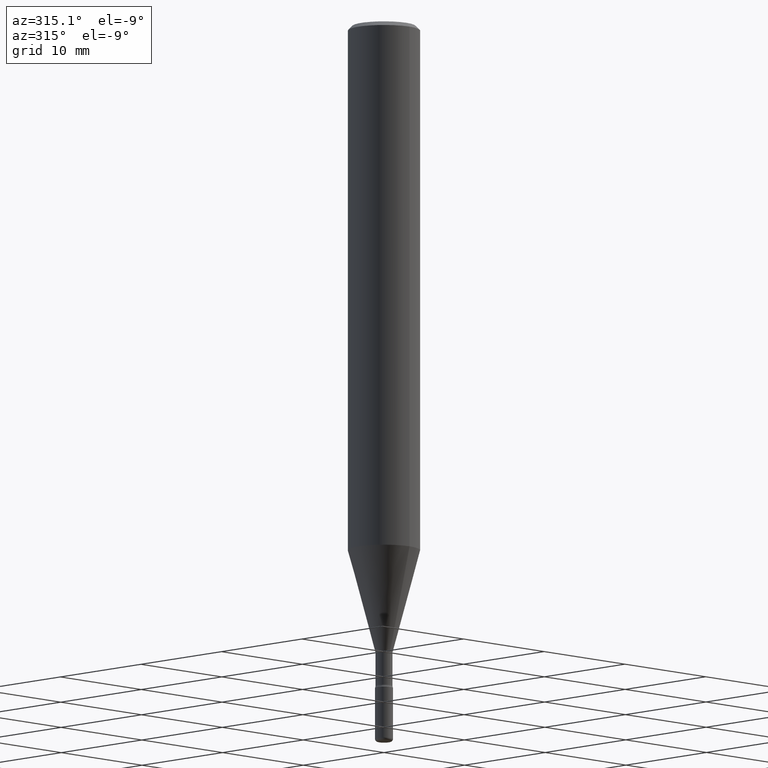
[diagram: clean part render]
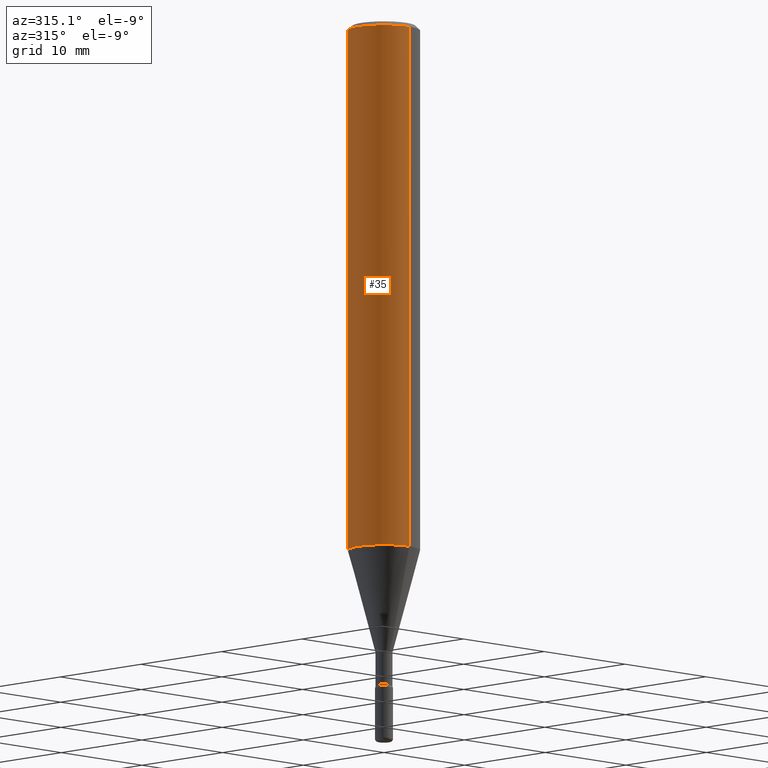
[diagram: same view with one face highlighted and labeled with its STEP entity id]
A machine part, auxiliary view. The second image highlights one B-rep face of the part: STEP entity #35.
In plain terms, the highlighted cylindrical surface (edge-blend (fillet) strip) has radius 3.175 mm, axis along (-0, 0, 1).
Its self-contained STEP definition (entity closure, byte-faithful):
#2 = DIRECTION ( 'NONE',  ( -2.445452788277100287E-29, 3.491504277399136299E-15, 1.000000000000000000 ) ) ;
#35 = ADVANCED_FACE ( 'NONE', ( #523 ), #300, .T. ) ;
#36 = DIRECTION ( 'NONE',  ( -2.445452788277100287E-29, 3.491504277399136299E-15, 1.000000000000000000 ) ) ;
#55 = CARTESIAN_POINT ( 'NONE',  ( -8.728703347107832402E-16, -0.1250000000000000000, 9.145114335661381006E-16 ) ) ;
#59 = LINE ( 'NONE', #55, #196 ) ;
#60 = AXIS2_PLACEMENT_3D ( 'NONE', #255, #36, #346 ) ;
#71 = CIRCLE ( 'NONE', #298, 0.1250000000000000000 ) ;
#106 = VECTOR ( 'NONE', #571, 39.37007874015748143 ) ;
#145 = DIRECTION ( 'NONE',  ( -6.982962677686265922E-15, -1.000000000000000000, 3.483106191921935554E-15 ) ) ;
#148 = VERTEX_POINT ( 'NONE', #405 ) ;
#160 = AXIS2_PLACEMENT_3D ( 'NONE', #402, #2, #181 ) ;
#171 = ORIENTED_EDGE ( 'NONE', *, *, #379, .F. ) ;
#181 = DIRECTION ( 'NONE',  ( -6.982962677686265922E-15, -1.000000000000000000, 4.370956789862821150E-15 ) ) ;
#187 = VERTEX_POINT ( 'NONE', #364 ) ;
#190 = CARTESIAN_POINT ( 'NONE',  ( 8.881784197001251337E-16, 0.1250000000000000000, 4.163536421635405055E-17 ) ) ;
#196 = VECTOR ( 'NONE', #439, 39.37007874015748143 ) ;
#198 = VERTEX_POINT ( 'NONE', #539 ) ;
#230 = CARTESIAN_POINT ( 'NONE',  ( -8.728703347107386696E-16, -0.1250000000000064115, -1.831215942796415863 ) ) ;
#231 = EDGE_CURVE ( 'NONE', #237, #148, #59, .T. ) ;
#237 = VERTEX_POINT ( 'NONE', #230 ) ;
#248 = EDGE_CURVE ( 'NONE', #198, #187, #398, .T. ) ;
#255 = CARTESIAN_POINT ( 'NONE',  ( -1.169113584055446105E-44, 1.669184350826100908E-30, 4.780733988912460139E-16 ) ) ;
#288 = EDGE_CURVE ( 'NONE', #198, #237, #533, .T. ) ;
#297 = ORIENTED_EDGE ( 'NONE', *, *, #248, .F. ) ;
#298 = AXIS2_PLACEMENT_3D ( 'NONE', #544, #462, #145 ) ;
#300 = CYLINDRICAL_SURFACE ( 'NONE', #60, 0.1250000000000000000 ) ;
#346 = DIRECTION ( 'NONE',  ( -6.982962677686265922E-15, -1.000000000000000000, 3.491504277399136299E-15 ) ) ;
#364 = CARTESIAN_POINT ( 'NONE',  ( 8.881784197001701974E-16, 0.1249999999999999445, -0.01500000000000044874 ) ) ;
#379 = EDGE_CURVE ( 'NONE', #187, #148, #71, .T. ) ;
#398 = LINE ( 'NONE', #190, #106 ) ;
#402 = CARTESIAN_POINT ( 'NONE',  ( 4.478152133248975156E-29, -6.393698297115179896E-15, -1.831215942796416307 ) ) ;
#405 = CARTESIAN_POINT ( 'NONE',  ( -8.728703347107828458E-16, -0.1250000000000000555, -0.01499999999999957791 ) ) ;
#439 = DIRECTION ( 'NONE',  ( -2.445452788277100006E-29, 3.491504277399136299E-15, 1.000000000000000000 ) ) ;
#462 = DIRECTION ( 'NONE',  ( -2.445452788277100287E-29, 3.491504277399136299E-15, 1.000000000000000000 ) ) ;
#482 = ORIENTED_EDGE ( 'NONE', *, *, #288, .T. ) ;
#514 = EDGE_LOOP ( 'NONE', ( #297, #482, #564, #171 ) ) ;
#523 = FACE_OUTER_BOUND ( 'NONE', #514, .T. ) ;
#533 = CIRCLE ( 'NONE', #160, 0.1250000000000000000 ) ;
#539 = CARTESIAN_POINT ( 'NONE',  ( 8.881784197001696058E-16, 0.1249999999999935746, -1.831215942796416973 ) ) ;
#544 = CARTESIAN_POINT ( 'NONE',  ( 3.668179182415653390E-31, -5.237256416098709156E-17, -0.01500000000000001332 ) ) ;
#564 = ORIENTED_EDGE ( 'NONE', *, *, #231, .T. ) ;
#571 = DIRECTION ( 'NONE',  ( -2.445452788277100006E-29, 3.491504277399136299E-15, 1.000000000000000000 ) ) ;